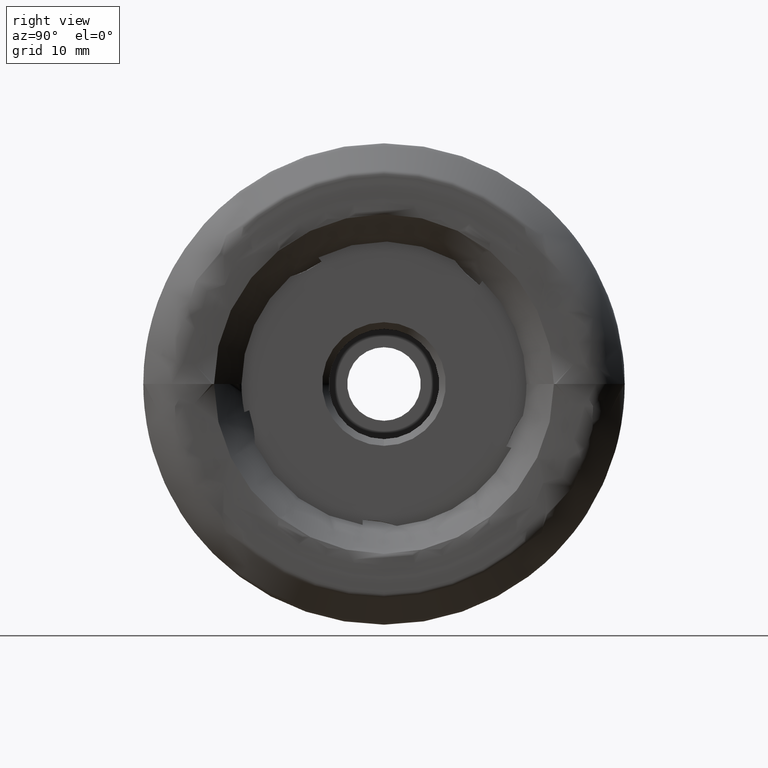
[diagram: clean part render]
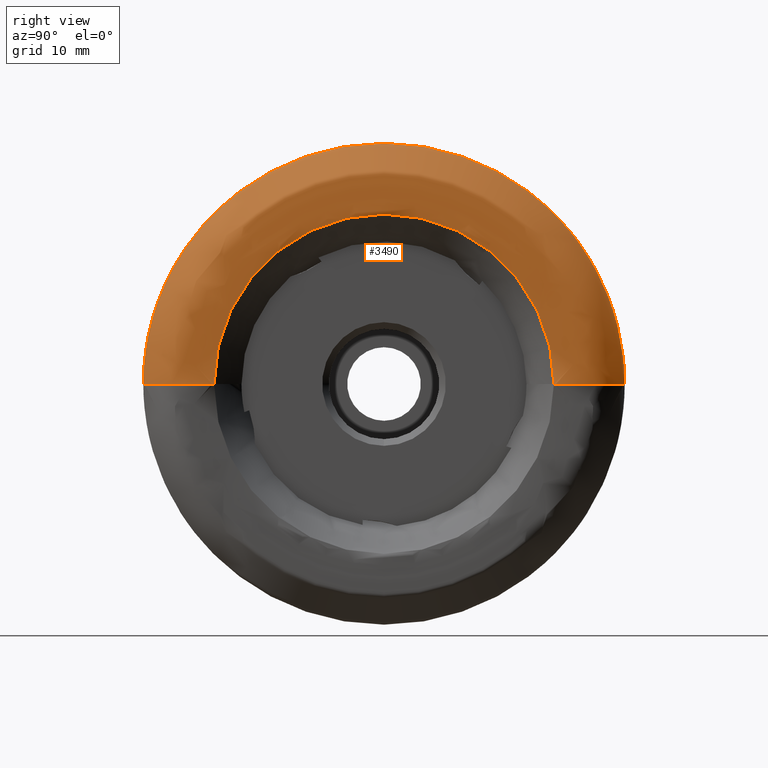
[diagram: same view with one face highlighted and labeled with its STEP entity id]
A machine part, right view. The second image highlights one B-rep face of the part: STEP entity #3490.
In plain terms, the highlighted face is a freeform B-spline surface patch.
Its self-contained STEP definition (entity closure, byte-faithful):
#3 = B_SPLINE_CURVE_WITH_KNOTS ( 'NONE', 3,
 ( #7957, #6799, #2420, #3541, #7987, #1782 ),
 .UNSPECIFIED., .F., .F.,
 ( 4, 2, 4 ),
 ( 0.01189599532139471600, 0.01226072878969401400, 0.01262546225799330900 ),
 .UNSPECIFIED. ) ;
#62 = CARTESIAN_POINT ( 'NONE',  ( -13.17009540682289300, -12.97455860111325300, 28.26625133954329200 ) ) ;
#80 = CARTESIAN_POINT ( 'NONE',  ( -13.17025533913538400, 30.29722864687689900, 6.481297492364658000 ) ) ;
#132 = ORIENTED_EDGE ( 'NONE', *, *, #6929, .T. ) ;
#156 = CARTESIAN_POINT ( 'NONE',  ( -3.011743768016451800, 35.76914618918057400, 0.0000000000000000000 ) ) ;
#189 = CARTESIAN_POINT ( 'NONE',  ( -1.185337271833276000, 33.83780983665130300, 0.0000000000000000000 ) ) ;
#217 = CARTESIAN_POINT ( 'NONE',  ( -7.731906885135562600, 36.00369043984147800, 0.0000000000000000000 ) ) ;
#223 = VERTEX_POINT ( 'NONE', #3355 ) ;
#247 = CARTESIAN_POINT ( 'NONE',  ( -5.081526267317423500, -36.00049763243033100, 4.408789419326766900E-015 ) ) ;
#252 = EDGE_CURVE ( 'NONE', #946, #1660, #7359, .T. ) ;
#259 = CARTESIAN_POINT ( 'NONE',  ( 0.8773937693158118100, -26.68687184256820500, 3.268199218125678200E-015 ) ) ;
#269 = CARTESIAN_POINT ( 'NONE',  ( 0.8903510184149950900, -29.17046889818731300, 58.34093779637463900 ) ) ;
#278 = CARTESIAN_POINT ( 'NONE',  ( 0.8491489175038966500, 30.61863014449269100, 0.0000000000000000000 ) ) ;
#279 = CARTESIAN_POINT ( 'NONE',  ( 0.6769082915252762100, -25.41563269011137300, 3.761732853588447800E-015 ) ) ;
#357 = ORIENTED_EDGE ( 'NONE', *, *, #6953, .F. ) ;
#386 = CARTESIAN_POINT ( 'NONE',  ( -5.681652619404665900, 36.00135854139767800, 0.0000000000000000000 ) ) ;
#414 = CARTESIAN_POINT ( 'NONE',  ( -8.288709363096252500, 35.99403635961470400, 71.98807271922939300 ) ) ;
#419 = CARTESIAN_POINT ( 'NONE',  ( -11.04244590814190900, -33.93129305921696200, 4.155384943590084700E-015 ) ) ;
#438 = CARTESIAN_POINT ( 'NONE',  ( -3.851631813436717800, 35.99627813785060900, 0.0000000000000000000 ) ) ;
#443 = CARTESIAN_POINT ( 'NONE',  ( 0.2656641914594217700, 32.31949441764042800, 0.0000000000000000000 ) ) ;
#444 = CARTESIAN_POINT ( 'NONE',  ( -9.631152913316247700, -35.40931746972965800, 4.336390729929688100E-015 ) ) ;
#459 = AXIS2_PLACEMENT_3D ( 'NONE', #4547, #5771, #7018 ) ;
#462 = CARTESIAN_POINT ( 'NONE',  ( -13.17025533913538400, 22.43254955693184300, 21.37077446517712400 ) ) ;
#467 = CARTESIAN_POINT ( 'NONE',  ( -7.143653929741852900, 36.00073531820430600, 0.0000000000000000000 ) ) ;
#474 = CARTESIAN_POINT ( 'NONE',  ( -0.1635939075222977700, -32.77030983189955300, 4.013205504270282800E-015 ) ) ;
#475 = CARTESIAN_POINT ( 'NONE',  ( -13.08139287266340900, -31.76693597388611300, 3.890327645913853400E-015 ) ) ;
#477 = CARTESIAN_POINT ( 'NONE',  ( 0.8510070374098627200, 31.04961192950485900, 0.0000000000000000000 ) ) ;
#491 = CARTESIAN_POINT ( 'NONE',  ( -11.04244590814191800, 33.93129305921695500, 67.86258611843389600 ) ) ;
#499 = CARTESIAN_POINT ( 'NONE',  ( -2.372931946753448900, 35.08185868617623300, 70.16371737235245100 ) ) ;
#516 = CARTESIAN_POINT ( 'NONE',  ( -13.13741538218969000, 31.68006013523005700, 0.0000000000000000000 ) ) ;
#535 = CARTESIAN_POINT ( 'NONE',  ( 0.7326512720188010900, 25.48099093884645700, 50.96198187769290700 ) ) ;
#542 = CARTESIAN_POINT ( 'NONE',  ( -11.71344801453608900, -33.22978714055647500, 66.45957428111295000 ) ) ;
#550 = CARTESIAN_POINT ( 'NONE',  ( -13.16857380573765500, 2.159345105495334800, 31.12359656850555800 ) ) ;
#567 = CARTESIAN_POINT ( 'NONE',  ( -13.16859245314035200, -31.25356432908474200, 62.50712865816948500 ) ) ;
#572 = VERTEX_POINT ( 'NONE', #5542 ) ;
#594 = CARTESIAN_POINT ( 'NONE',  ( -12.98773168804861200, -31.91275824050798700, 63.82551648101597400 ) ) ;
#618 = CARTESIAN_POINT ( 'NONE',  ( -13.16998003406791400, -31.10863379948670400, 3.809708880838854500E-015 ) ) ;
#640 = CARTESIAN_POINT ( 'NONE',  ( -13.17011651254518200, 30.34361586820452300, 6.758394760556298000 ) ) ;
#651 = EDGE_CURVE ( 'NONE', #3301, #754, #3614, .T. ) ;
#690 = CARTESIAN_POINT ( 'NONE',  ( 0.6769082915252702100, 25.41563269011137300, 0.0000000000000000000 ) ) ;
#754 = VERTEX_POINT ( 'NONE', #4066 ) ;
#796 = CARTESIAN_POINT ( 'NONE',  ( -13.11523772923032600, -29.55612944276756000, 11.41816260885997100 ) ) ;
#812 = CARTESIAN_POINT ( 'NONE',  ( 0.8637226665294909200, 31.38531758158612200, 0.0000000000000000000 ) ) ;
#814 = CARTESIAN_POINT ( 'NONE',  ( 0.6769082915252702100, 25.41563269011137300, 0.0000000000000000000 ) ) ;
#820 = CARTESIAN_POINT ( 'NONE',  ( 0.8955615196961443900, 29.95967021169398900, 59.91934042338795800 ) ) ;
#826 = B_SPLINE_CURVE_WITH_KNOTS ( 'NONE', 3,
 ( #3000, #6090, #550, #1744, #2977, #6751 ),
 .UNSPECIFIED., .F., .F.,
 ( 4, 2, 4 ),
 ( 0.005418451642175720100, 0.006269461646803571300, 0.007120471651431428500 ),
 .UNSPECIFIED. ) ;
#841 = CARTESIAN_POINT ( 'NONE',  ( 0.8795528310029795400, 26.27536188140701900, 0.0000000000000000000 ) ) ;
#897 = CARTESIAN_POINT ( 'NONE',  ( -9.956295156690961400, 35.06649553974418900, 0.0000000000000000000 ) ) ;
#908 = CARTESIAN_POINT ( 'NONE',  ( 0.8869010795176265300, -27.39395413118382500, 3.354791824274368200E-015 ) ) ;
#921 = CARTESIAN_POINT ( 'NONE',  ( -9.225536044631734700, 35.83698968397022400, 0.0000000000000000000 ) ) ;
#923 = CARTESIAN_POINT ( 'NONE',  ( 0.8637226665294985800, -31.38531758158612200, 3.843592871651259500E-015 ) ) ;
#946 = VERTEX_POINT ( 'NONE', #6247 ) ;
#975 = CARTESIAN_POINT ( 'NONE',  ( 0.2656641914594297100, -32.31949441764042800, 3.957996538862409600E-015 ) ) ;
#999 = CARTESIAN_POINT ( 'NONE',  ( -6.699013288944462900, 36.00135691815364000, 72.00271383630727900 ) ) ;
#1020 = CARTESIAN_POINT ( 'NONE',  ( -8.288709363096243600, -35.99403635961469700, 71.98807271922939300 ) ) ;
#1049 = CARTESIAN_POINT ( 'NONE',  ( -5.681652619404657000, -36.00135854139767800, 4.408894850267888900E-015 ) ) ;
#1056 = CARTESIAN_POINT ( 'NONE',  ( -8.715012628422291700, -36.01812692462019100, 4.410948384951922000E-015 ) ) ;
#1078 = CARTESIAN_POINT ( 'NONE',  ( -3.492091797847648700, -36.00552201842310000, 72.01104403684620100 ) ) ;
#1086 = CARTESIAN_POINT ( 'NONE',  ( -1.185337271833267500, -33.83780983665130300, 4.143936550661183600E-015 ) ) ;
#1108 = CARTESIAN_POINT ( 'NONE',  ( -8.715012628422300600, 36.01812692462019100, 72.03625384924036700 ) ) ;
#1114 = CARTESIAN_POINT ( 'NONE',  ( 0.8239534391794791600, 31.69573444937444500, 0.0000000000000000000 ) ) ;
#1130 = CARTESIAN_POINT ( 'NONE',  ( -9.631152913316256600, 35.40931746972965800, 0.0000000000000000000 ) ) ;
#1140 = CARTESIAN_POINT ( 'NONE',  ( -2.372931946753440000, -35.08185868617622600, 70.16371737235245100 ) ) ;
#1159 = CARTESIAN_POINT ( 'NONE',  ( -13.13741538218968200, -31.68006013523005400, 63.36012027046010800 ) ) ;
#1175 = CARTESIAN_POINT ( 'NONE',  ( 0.7326512720188074200, -25.48099093884645300, 50.96198187769290700 ) ) ;
#1184 = CARTESIAN_POINT ( 'NONE',  ( -13.17348671179126100, -31.45966882609840800, 62.91933765219681600 ) ) ;
#1206 = CARTESIAN_POINT ( 'NONE',  ( -9.631152913316247700, -35.40931746972965800, 70.81863493945931500 ) ) ;
#1230 = CARTESIAN_POINT ( 'NONE',  ( -12.98773168804861000, -31.91275824050799400, 3.908185723120143000E-015 ) ) ;
#1247 = CARTESIAN_POINT ( 'NONE',  ( 0.8422348069530951600, -25.63399111735867600, 51.26798223471735100 ) ) ;
#1252 = CARTESIAN_POINT ( 'NONE',  ( -13.17022834611911200, 31.00281612093919000, 0.0000000000000000000 ) ) ;
#1253 = EDGE_CURVE ( 'NONE', #6829, #5048, #7161, .T. ) ;
#1274 = CARTESIAN_POINT ( 'NONE',  ( -13.16998003406792100, 31.10863379948669700, 0.0000000000000000000 ) ) ;
#1276 = CARTESIAN_POINT ( 'NONE',  ( -13.17025533913538200, -28.32058393951910300, 12.56478436704439100 ) ) ;
#1349 = CARTESIAN_POINT ( 'NONE',  ( 0.8869010795176266400, -27.39395413118381800, 54.78790826236763700 ) ) ;
#1353 = CARTESIAN_POINT ( 'NONE',  ( -13.17025533913538200, 30.98272552351825800, 61.96545104703651700 ) ) ;
#1399 = AXIS2_PLACEMENT_3D ( 'NONE', #7438, #8066, #4303 ) ;
#1429 = CARTESIAN_POINT ( 'NONE',  ( -13.11523772923033900, 1.173550330312063100, 31.66325953881286300 ) ) ;
#1431 = CARTESIAN_POINT ( 'NONE',  ( -12.75715301477391100, 32.13220798184731600, 0.0000000000000000000 ) ) ;
#1441 = CARTESIAN_POINT ( 'NONE',  ( 0.8955615196961517200, -29.95967021169398200, 59.91934042338797900 ) ) ;
#1461 = CARTESIAN_POINT ( 'NONE',  ( -3.267599600869943700, 35.96652522588161100, 0.0000000000000000000 ) ) ;
#1497 = CARTESIAN_POINT ( 'NONE',  ( -0.1635939075223058500, 32.77030983189955300, 0.0000000000000000000 ) ) ;
#1499 = CARTESIAN_POINT ( 'NONE',  ( 0.8422348069530953800, -25.63399111735868300, 3.139258517124499000E-015 ) ) ;
#1542 = CARTESIAN_POINT ( 'NONE',  ( 0.8903510184149952000, -29.17046889818732000, 3.572352136579251600E-015 ) ) ;
#1547 = CARTESIAN_POINT ( 'NONE',  ( -10.69194148022291700, 34.29773228354669400, 0.0000000000000000000 ) ) ;
#1549 = CARTESIAN_POINT ( 'NONE',  ( -1.975678183863318800, -34.66350488162732500, 4.245055030051355300E-015 ) ) ;
#1555 = CARTESIAN_POINT ( 'NONE',  ( 0.8795528310029860900, -26.27536188140702200, 3.217803782450348000E-015 ) ) ;
#1607 = CARTESIAN_POINT ( 'NONE',  ( -3.492091797847649100, -36.00552201842310800, 4.409404729149141100E-015 ) ) ;
#1630 = CARTESIAN_POINT ( 'NONE',  ( -6.186797021292384200, 36.00132009260902100, 72.00264018521802700 ) ) ;
#1657 = CARTESIAN_POINT ( 'NONE',  ( -9.043963290430571800, -35.96793158361330700, 71.93586316722661400 ) ) ;
#1660 = VERTEX_POINT ( 'NONE', #7533 ) ;
#1688 = CARTESIAN_POINT ( 'NONE',  ( -3.492091797847658000, 36.00552201842310800, 72.01104403684620100 ) ) ;
#1694 = CARTESIAN_POINT ( 'NONE',  ( -12.75715301477390400, -32.13220798184731600, 3.935060565450634800E-015 ) ) ;
#1712 = CARTESIAN_POINT ( 'NONE',  ( -4.308370870621200900, 36.00286011124674000, 0.0000000000000000000 ) ) ;
#1719 = CARTESIAN_POINT ( 'NONE',  ( -1.599395780385767500, -34.27099581304320700, 4.196986532603570900E-015 ) ) ;
#1730 = CARTESIAN_POINT ( 'NONE',  ( 0.8339975965073290800, -28.21109362154964400, 56.42218724309928700 ) ) ;
#1736 = CARTESIAN_POINT ( 'NONE',  ( -6.379444055325612900, 36.00131635667011700, 0.0000000000000000000 ) ) ;
#1741 = CARTESIAN_POINT ( 'NONE',  ( -2.372931946753448400, 35.08185868617623300, 0.0000000000000000000 ) ) ;
#1742 = CARTESIAN_POINT ( 'NONE',  ( -6.379444055325604000, -36.00131635667011700, 4.408889684128730500E-015 ) ) ;
#1744 = CARTESIAN_POINT ( 'NONE',  ( -13.17213352084042600, 1.666171256084302500, 31.39430081097607000 ) ) ;
#1747 = EDGE_CURVE ( 'NONE', #1660, #6829, #6065, .T. ) ;
#1759 = CARTESIAN_POINT ( 'NONE',  ( -11.39561128621918600, 33.56192896292376600, 67.12385792584751700 ) ) ;
#1764 = CARTESIAN_POINT ( 'NONE',  ( -0.6637367395734633500, -33.29226382833061100, 4.077126433373428700E-015 ) ) ;
#1781 = CARTESIAN_POINT ( 'NONE',  ( -11.71344801453609100, -33.22978714055648900, 4.069475245803038400E-015 ) ) ;
#1782 = CARTESIAN_POINT ( 'NONE',  ( -13.11523772923626500, 22.83138065897512400, 21.96969007983673400 ) ) ;
#1802 = CARTESIAN_POINT ( 'NONE',  ( -11.04244590814190900, -33.93129305921694800, 67.86258611843389600 ) ) ;
#1811 = CARTESIAN_POINT ( 'NONE',  ( 0.8779665820292881200, -26.04477128202358600, 3.189564578505508600E-015 ) ) ;
#1824 = CARTESIAN_POINT ( 'NONE',  ( -10.69194148022290800, -34.29773228354668600, 68.59546456709337300 ) ) ;
#1832 = ORIENTED_EDGE ( 'NONE', *, *, #4915, .F. ) ;
#1840 = CARTESIAN_POINT ( 'NONE',  ( 0.7326512720188010900, 25.48099093884645700, 0.0000000000000000000 ) ) ;
#1847 = CARTESIAN_POINT ( 'NONE',  ( -11.71344801453610000, 33.22978714055648900, 0.0000000000000000000 ) ) ;
#1939 = AXIS2_PLACEMENT_3D ( 'NONE', #4283, #3656, #5444 ) ;
#1941 = ORIENTED_EDGE ( 'NONE', *, *, #8076, .F. ) ;
#2057 = CARTESIAN_POINT ( 'NONE',  ( -13.17025533913537800, -12.90314047274958800, 28.16803590607910100 ) ) ;
#2064 = CARTESIAN_POINT ( 'NONE',  ( -13.17022834611910100, 31.00281612094406100, 0.0000000000000000000 ) ) ;
#2085 = CARTESIAN_POINT ( 'NONE',  ( -13.17211317415996800, -13.18819403484361900, 28.56134480981161200 ) ) ;
#2092 = CARTESIAN_POINT ( 'NONE',  ( 0.8869010795176198700, 27.39395413118382200, 0.0000000000000000000 ) ) ;
#2096 = CARTESIAN_POINT ( 'NONE',  ( -13.11523772923039700, -3.015919409452347900E-015, 0.0000000000000000000 ) ) ;
#2120 = DIRECTION ( 'NONE',  ( 1.000000000000000000, 1.234377343560681600E-016, -0.0000000000000000000 ) ) ;
#2121 = CARTESIAN_POINT ( 'NONE',  ( -13.17025533913538600, 30.98272552351825800, 0.0000000000000000000 ) ) ;
#2122 = CARTESIAN_POINT ( 'NONE',  ( 0.8903510184149952000, -29.17046889818732000, 3.572352136579251600E-015 ) ) ;
#2146 = CARTESIAN_POINT ( 'NONE',  ( 0.8814524413362979600, 25.85308700828592900, 0.0000000000000000000 ) ) ;
#2147 = CARTESIAN_POINT ( 'NONE',  ( 0.6626705590894725900, -31.89877927880542400, 3.906473794049697800E-015 ) ) ;
#2149 = ORIENTED_EDGE ( 'NONE', *, *, #4269, .T. ) ;
#2177 = CARTESIAN_POINT ( 'NONE',  ( -13.17348671179127000, 31.45966882609841500, 0.0000000000000000000 ) ) ;
#2179 = CARTESIAN_POINT ( 'NONE',  ( -4.308370870621192100, -36.00286011124674000, 4.409078739538823700E-015 ) ) ;
#2212 = EDGE_CURVE ( 'NONE', #223, #4953, #6686, .T. ) ;
#2233 = CARTESIAN_POINT ( 'NONE',  ( 0.8795528310029860900, -26.27536188140702200, 3.217803782450348000E-015 ) ) ;
#2250 = CARTESIAN_POINT ( 'NONE',  ( -7.731906885135553700, -36.00369043984147800, 4.409180425464403500E-015 ) ) ;
#2267 = CARTESIAN_POINT ( 'NONE',  ( 0.8773937693158118100, -26.68687184256820200, 53.37374368513640400 ) ) ;
#2279 = CARTESIAN_POINT ( 'NONE',  ( -5.081526267317432400, 36.00049763243033100, 0.0000000000000000000 ) ) ;
#2303 = CARTESIAN_POINT ( 'NONE',  ( 0.8955615196961517200, -29.95967021169398900, 3.669001422826134400E-015 ) ) ;
#2308 = CARTESIAN_POINT ( 'NONE',  ( -4.308370870621192100, -36.00286011124673300, 72.00572022249346600 ) ) ;
#2332 = CARTESIAN_POINT ( 'NONE',  ( -3.011743768016452300, 35.76914618918058200, 71.53829237836113500 ) ) ;
#2338 = CARTESIAN_POINT ( 'NONE',  ( -1.975678183863318800, -34.66350488162731800, 69.32700976325463700 ) ) ;
#2360 = CARTESIAN_POINT ( 'NONE',  ( -5.681652619404657900, -36.00135854139767800, 72.00271708279535700 ) ) ;
#2366 = CARTESIAN_POINT ( 'NONE',  ( -0.1635939075223058500, 32.77030983189955300, 0.0000000000000000000 ) ) ;
#2368 = CARTESIAN_POINT ( 'NONE',  ( -12.98072886215345900, -31.91942307342384700, 3.909001929749868600E-015 ) ) ;
#2388 = CARTESIAN_POINT ( 'NONE',  ( -12.45997370198138300, 32.45221115560920600, 0.0000000000000000000 ) ) ;
#2394 = CARTESIAN_POINT ( 'NONE',  ( -0.1635939075223058800, 32.77030983189955300, 65.54061966379907700 ) ) ;
#2419 = CARTESIAN_POINT ( 'NONE',  ( -13.13741538218968200, -31.68006013523005700, 3.879688424140515600E-015 ) ) ;
#2420 = CARTESIAN_POINT ( 'NONE',  ( -13.16922204672032000, 22.57159731778707700, 21.56990601855681400 ) ) ;
#2438 = CARTESIAN_POINT ( 'NONE',  ( 0.8422348069530890500, 25.63399111735867900, 0.0000000000000000000 ) ) ;
#2443 = CARTESIAN_POINT ( 'NONE',  ( -12.45997370198138300, 32.45221115560920600, 64.90442231121841100 ) ) ;
#2462 = CARTESIAN_POINT ( 'NONE',  ( 0.6769082915252765400, -25.41563269011137600, 3.112517322224972300E-015 ) ) ;
#2469 = CARTESIAN_POINT ( 'NONE',  ( -9.225536044631734700, 35.83698968397022400, 0.0000000000000000000 ) ) ;
#2489 = CARTESIAN_POINT ( 'NONE',  ( -10.69194148022290800, -34.29773228354669400, 4.200260805905830000E-015 ) ) ;
#2684 = CARTESIAN_POINT ( 'NONE',  ( -11.39561128621918800, 33.56192896292376600, 0.0000000000000000000 ) ) ;
#2712 = CARTESIAN_POINT ( 'NONE',  ( -6.186797021292383300, 36.00132009260902100, 0.0000000000000000000 ) ) ;
#2740 = CARTESIAN_POINT ( 'NONE',  ( -3.492091797847658000, 36.00552201842310800, 0.0000000000000000000 ) ) ;
#2741 = CARTESIAN_POINT ( 'NONE',  ( 0.8510070374098703800, -31.04961192950486300, 3.802480786423560300E-015 ) ) ;
#2760 = CARTESIAN_POINT ( 'NONE',  ( -5.681652619404665900, 36.00135854139767800, 0.0000000000000000000 ) ) ;
#2782 = CARTESIAN_POINT ( 'NONE',  ( -13.16998003406789800, 31.10863379948913000, 0.0000000000000000000 ) ) ;
#2787 = DIRECTION ( 'NONE',  ( 1.000000000000000000, 1.234377343560681600E-016, -0.0000000000000000000 ) ) ;
#2814 = CARTESIAN_POINT ( 'NONE',  ( 0.8637226665294909200, 31.38531758158612200, 0.0000000000000000000 ) ) ;
#2827 = ORIENTED_EDGE ( 'NONE', *, *, #6224, .T. ) ;
#2841 = CARTESIAN_POINT ( 'NONE',  ( -2.723008428202819500, -35.43507327937143000, 4.339544906913413100E-015 ) ) ;
#2859 = CARTESIAN_POINT ( 'NONE',  ( -8.715012628422298800, 36.01812692462019100, 0.0000000000000000000 ) ) ;
#2889 = CARTESIAN_POINT ( 'NONE',  ( -7.731906885135554600, -36.00369043984147800, 72.00738087968295500 ) ) ;
#2897 = CARTESIAN_POINT ( 'NONE',  ( -6.699013288944454900, -36.00135691815364000, 4.408894651477827300E-015 ) ) ;
#2915 = CARTESIAN_POINT ( 'NONE',  ( -6.379444055325604000, -36.00131635667011700, 4.408889684128730500E-015 ) ) ;
#2923 = CARTESIAN_POINT ( 'NONE',  ( -0.6637367395734634600, -33.29226382833060400, 66.58452765666120900 ) ) ;
#2942 = CARTESIAN_POINT ( 'NONE',  ( -6.186797021292383300, 36.00132009260902100, 0.0000000000000000000 ) ) ;
#2947 = CARTESIAN_POINT ( 'NONE',  ( 0.6626705590894725900, -31.89877927880542400, 3.906473794049697800E-015 ) ) ;
#2968 = CARTESIAN_POINT ( 'NONE',  ( -6.699013288944454900, -36.00135691815364000, 4.408894651477827300E-015 ) ) ;
#2974 = CARTESIAN_POINT ( 'NONE',  ( 0.8637226665294985800, -31.38531758158612200, 3.843592871651259500E-015 ) ) ;
#2977 = CARTESIAN_POINT ( 'NONE',  ( -13.16656680713323400, 1.419818888233930400, 31.52978262794960800 ) ) ;
#2992 = CARTESIAN_POINT ( 'NONE',  ( -12.98773168804861900, 31.91275824050799400, 0.0000000000000000000 ) ) ;
#2998 = CARTESIAN_POINT ( 'NONE',  ( 0.6626705590894725900, -31.89877927880542100, 63.79755855761084100 ) ) ;
#3000 = CARTESIAN_POINT ( 'NONE',  ( -13.17025533913538200, 2.659956771102236100, 30.86833184416575500 ) ) ;
#3018 = CARTESIAN_POINT ( 'NONE',  ( -9.381096744915060600, -35.66587087471045700, 71.33174174942091400 ) ) ;
#3044 = CARTESIAN_POINT ( 'NONE',  ( -12.09380887392045300, 32.83100224547518300, 65.66200449095035200 ) ) ;
#3049 = CARTESIAN_POINT ( 'NONE',  ( 0.8795528310029795400, 26.27536188140701200, 52.55072376281401600 ) ) ;
#3071 = CARTESIAN_POINT ( 'NONE',  ( -12.45997370198137600, -32.45221115560920600, 64.90442231121841100 ) ) ;
#3094 = CARTESIAN_POINT ( 'NONE',  ( -9.225536044631725800, -35.83698968397022400, 4.388765470755084800E-015 ) ) ;
#3104 = FACE_OUTER_BOUND ( 'NONE', #6288, .T. ) ;
#3115 = CIRCLE ( 'NONE', #459, 30.98272552351826200 ) ;
#3122 = CARTESIAN_POINT ( 'NONE',  ( -13.17025533913538200, 2.659956771102236100, 30.86833184416575500 ) ) ;
#3148 = VERTEX_POINT ( 'NONE', #462 ) ;
#3272 = CARTESIAN_POINT ( 'NONE',  ( 0.4888808830429692800, 32.08944693147780200, 0.0000000000000000000 ) ) ;
#3288 = CARTESIAN_POINT ( 'NONE',  ( -13.16857380573764200, -28.72492469414901000, 12.17455280325268600 ) ) ;
#3301 = VERTEX_POINT ( 'NONE', #1429 ) ;
#3303 = CARTESIAN_POINT ( 'NONE',  ( -13.13741538218969000, 31.68006013523005700, 0.0000000000000000000 ) ) ;
#3336 = CARTESIAN_POINT ( 'NONE',  ( 0.8779665820292817900, 26.04477128202358200, 0.0000000000000000000 ) ) ;
#3341 = EDGE_CURVE ( 'NONE', #3947, #223, #7335, .T. ) ;
#3355 = CARTESIAN_POINT ( 'NONE',  ( -13.17025533913538200, -28.32058393951910300, 12.56478436704439100 ) ) ;
#3357 = CARTESIAN_POINT ( 'NONE',  ( 0.8773937693158051500, 26.68687184256820200, 0.0000000000000000000 ) ) ;
#3358 = CARTESIAN_POINT ( 'NONE',  ( -2.372931946753440000, -35.08185868617623300, 4.296288594816550100E-015 ) ) ;
#3386 = CARTESIAN_POINT ( 'NONE',  ( -6.379444055325612900, 36.00131635667011700, 0.0000000000000000000 ) ) ;
#3482 = ORIENTED_EDGE ( 'NONE', *, *, #1253, .T. ) ;
#3485 = CARTESIAN_POINT ( 'NONE',  ( -7.143653929741844000, -36.00073531820430600, 4.408818527438997800E-015 ) ) ;
#3490 = ADVANCED_FACE ( 'NONE', ( #3104 ), #6579, .T. ) ;
#3515 = CARTESIAN_POINT ( 'NONE',  ( -6.186797021292374400, -36.00132009260901400, 72.00264018521802700 ) ) ;
#3539 = CARTESIAN_POINT ( 'NONE',  ( -3.851631813436708900, -35.99627813785060900, 4.408272680273659400E-015 ) ) ;
#3541 = CARTESIAN_POINT ( 'NONE',  ( -13.17211317415996800, 22.71162606922714700, 21.76834675709754700 ) ) ;
#3545 = CARTESIAN_POINT ( 'NONE',  ( -0.6637367395734716800, 33.29226382833061100, 0.0000000000000000000 ) ) ;
#3565 = CARTESIAN_POINT ( 'NONE',  ( -6.699013288944454000, -36.00135691815364000, 72.00271383630727900 ) ) ;
#3571 = CARTESIAN_POINT ( 'NONE',  ( 0.4888808830429772200, -32.08944693147780200, 3.929823847104314600E-015 ) ) ;
#3573 = CARTESIAN_POINT ( 'NONE',  ( -9.956295156690952600, -35.06649553974418900, 4.294407152006266600E-015 ) ) ;
#3586 = CARTESIAN_POINT ( 'NONE',  ( 0.8869010795176198700, 27.39395413118382200, 0.0000000000000000000 ) ) ;
#3592 = CARTESIAN_POINT ( 'NONE',  ( -4.308370870621200900, 36.00286011124674000, 72.00572022249346600 ) ) ;
#3600 = CARTESIAN_POINT ( 'NONE',  ( 0.2656641914594217700, 32.31949441764042800, 64.63898883528084100 ) ) ;
#3614 = CIRCLE ( 'NONE', #7164, 31.68499999999999200 ) ;
#3626 = CARTESIAN_POINT ( 'NONE',  ( -12.98773168804861700, 31.91275824050799100, 63.82551648101597400 ) ) ;
#3648 = CARTESIAN_POINT ( 'NONE',  ( -11.04244590814190900, -33.93129305921696200, 4.155384943590084700E-015 ) ) ;
#3656 = DIRECTION ( 'NONE',  ( 1.000000000000000000, 1.234377343560681600E-016, -0.0000000000000000000 ) ) ;
#3669 = CARTESIAN_POINT ( 'NONE',  ( 0.8814524413362978500, 25.85308700828592200, 51.70617401657183600 ) ) ;
#3674 = CARTESIAN_POINT ( 'NONE',  ( -13.16859245314036100, 31.25356432908475300, 62.50712865816948500 ) ) ;
#3688 = CARTESIAN_POINT ( 'NONE',  ( 0.6769082915252702100, 25.41563269011137300, 0.0000000000000000000 ) ) ;
#3699 = CARTESIAN_POINT ( 'NONE',  ( -12.75715301477390400, -32.13220798184731600, 3.935060565450634800E-015 ) ) ;
#3726 = CARTESIAN_POINT ( 'NONE',  ( -10.32000283844516100, 34.68684051006878400, 69.37368102013755300 ) ) ;
#3736 = CARTESIAN_POINT ( 'NONE',  ( 0.8491489175038966500, 30.61863014449269100, 0.0000000000000000000 ) ) ;
#3737 = CARTESIAN_POINT ( 'NONE',  ( 0.8955615196961442800, 29.95967021169398600, 0.0000000000000000000 ) ) ;
#3800 = CARTESIAN_POINT ( 'NONE',  ( -13.17213352084042900, 30.50966050617204300, 7.585437750241117000 ) ) ;
#3834 = CARTESIAN_POINT ( 'NONE',  ( -13.11523772923625600, -13.33957960579438800, 28.74012597292806200 ) ) ;
#3894 = CARTESIAN_POINT ( 'NONE',  ( -2.372931946753448400, 35.08185868617623300, 0.0000000000000000000 ) ) ;
#3912 = CARTESIAN_POINT ( 'NONE',  ( -13.16922204672030200, -13.04615353257499600, 28.36433903919123300 ) ) ;
#3922 = CARTESIAN_POINT ( 'NONE',  ( 0.8510070374098627200, 31.04961192950485900, 0.0000000000000000000 ) ) ;
#3947 = VERTEX_POINT ( 'NONE', #4793 ) ;
#3951 = CARTESIAN_POINT ( 'NONE',  ( -11.04244590814191800, 33.93129305921696200, 0.0000000000000000000 ) ) ;
#3975 = CARTESIAN_POINT ( 'NONE',  ( -13.17025533913538200, -3.022710658568705000E-015, 0.0000000000000000000 ) ) ;
#3976 = CARTESIAN_POINT ( 'NONE',  ( -9.381096744915069500, 35.66587087471045700, 0.0000000000000000000 ) ) ;
#4007 = CARTESIAN_POINT ( 'NONE',  ( 0.8239534391794791600, 31.69573444937444500, 0.0000000000000000000 ) ) ;
#4017 = CARTESIAN_POINT ( 'NONE',  ( -13.11523772923039700, -3.015919409452347900E-015, 0.0000000000000000000 ) ) ;
#4047 = DIRECTION ( 'NONE',  ( -1.094980890627620400E-016, 1.000000000000000000, 0.0000000000000000000 ) ) ;
#4063 = CARTESIAN_POINT ( 'NONE',  ( 0.8339975965073293000, -28.21109362154964700, 3.454862550407708800E-015 ) ) ;
#4066 = CARTESIAN_POINT ( 'NONE',  ( -13.11523772923625600, -13.33957960579438800, 28.74012597292806200 ) ) ;
#4113 = CARTESIAN_POINT ( 'NONE',  ( -3.011743768016443800, -35.76914618918056700, 71.53829237836113500 ) ) ;
#4123 = CARTESIAN_POINT ( 'NONE',  ( -13.11523772923038000, 30.62283859691001500, 8.135169406201740100 ) ) ;
#4148 = CARTESIAN_POINT ( 'NONE',  ( -3.267599600869934800, -35.96652522588161100, 4.404628999432845400E-015 ) ) ;
#4156 = CARTESIAN_POINT ( 'NONE',  ( -7.143653929741844000, -36.00073531820430600, 4.408818527438997800E-015 ) ) ;
#4172 = CARTESIAN_POINT ( 'NONE',  ( -2.723008428202819500, -35.43507327937143000, 70.87014655874286000 ) ) ;
#4176 = CARTESIAN_POINT ( 'NONE',  ( 0.8239534391794791600, 31.69573444937444500, 63.39146889874887600 ) ) ;
#4195 = CARTESIAN_POINT ( 'NONE',  ( -3.851631813436717300, 35.99627813785061600, 71.99255627570120500 ) ) ;
#4198 = ORIENTED_EDGE ( 'NONE', *, *, #1747, .T. ) ;
#4200 = CARTESIAN_POINT ( 'NONE',  ( 0.8239534391794869400, -31.69573444937443800, 63.39146889874887600 ) ) ;
#4201 = CARTESIAN_POINT ( 'NONE',  ( -9.225536044631725800, -35.83698968397022400, 4.388765470755084800E-015 ) ) ;
#4217 = CARTESIAN_POINT ( 'NONE',  ( -3.492091797847658000, 36.00552201842310800, 0.0000000000000000000 ) ) ;
#4223 = CARTESIAN_POINT ( 'NONE',  ( -1.599395780385775900, 34.27099581304320700, 68.54199162608640000 ) ) ;
#4249 = CARTESIAN_POINT ( 'NONE',  ( -12.75715301477390500, -32.13220798184730900, 64.26441596369461700 ) ) ;
#4269 = EDGE_CURVE ( 'NONE', #6732, #946, #5845, .T. ) ;
#4272 = CARTESIAN_POINT ( 'NONE',  ( -13.17348671179127000, 31.45966882609841500, 0.0000000000000000000 ) ) ;
#4283 = CARTESIAN_POINT ( 'NONE',  ( 0.6769082915252731000, -1.313448152742206900E-015, 0.0000000000000000000 ) ) ;
#4298 = CARTESIAN_POINT ( 'NONE',  ( -9.956295156690961400, 35.06649553974419600, 70.13299107948836300 ) ) ;
#4303 = DIRECTION ( 'NONE',  ( -1.094980890627620400E-016, 1.000000000000000000, 0.0000000000000000000 ) ) ;
#4311 = B_SPLINE_CURVE_WITH_KNOTS ( 'NONE', 3,
 ( #279, #4633, #1499, #5853, #5256, #2233, #5888, #7829, #4063, #2122, #6619, #6502, #2741, #923, #4660, #2147, #5978, #975, #7231, #5341, #7119, #5283, #1549, #3358, #2841, #5926, #5311, #1607, #7750, #2179, #247, #6553, #5949, #1742, #2897, #4156, #7912, #7339, #1056, #4778, #4201, #4809, #444, #3573, #7373, #6113, #419, #5470, #7994, #7886, #5419, #1694, #2368, #475, #6749 ),
 .UNSPECIFIED., .F., .F.,
 ( 4, 1, 1, 1, 1, 1, 1, 1, 1, 1, 1, 1, 1, 1, 1, 1, 1, 1, 1, 1, 1, 1, 1, 1, 1, 1, 1, 1, 1, 1, 1, 1, 1, 1, 1, 1, 1, 1, 1, 1, 1, 1, 1, 1, 1, 1, 1, 1, 1, 1, 1, 1, 4 ),
 ( 0.0000000000000000000, 0.005206402175519087700, 0.01127024345722349800, 0.01310695478144814500, 0.01690509640540080800, 0.02530848474839602800, 0.03818228578278340400, 0.05997523632573105400, 0.07509721469525672300, 0.09668704718361671700, 0.1079923595276068200, 0.1153388150103440300, 0.1228840271817703700, 0.1285988625673358000, 0.1338139750599458600, 0.1382770339274778100, 0.1444018786646815400, 0.1533063016225023300, 0.1762185834832225600, 0.1884292868187187300, 0.1992884307503665900, 0.2127245781392437500, 0.2215502283364232100, 0.2344433466767488800, 0.2429719183492294600, 0.2485239533970654600, 0.2536693044897949700, 0.2564384346056107800, 0.2704767708064568800, 0.2814579618747353200, 0.3035512373758871800, 0.3070313395298510700, 0.3122312181979924300, 0.3152870915960369100, 0.3264993766933615400, 0.3393167122801001900, 0.3511309520383115200, 0.3603934466132662200, 0.3653514513014479200, 0.3710357281075983800, 0.3735511902581497000, 0.3794714660104357400, 0.3928382422289509200, 0.4023466725055844200, 0.4114973353115070100, 0.4256304792000374400, 0.4332374280285543600, 0.4426291067938224500, 0.4536362741218079000, 0.4668081983197906500, 0.4747287366511387400, 0.4802253031722830100, 0.4856179381851841700 ),
 .UNSPECIFIED. ) ;
#4320 = CARTESIAN_POINT ( 'NONE',  ( -9.225536044631727600, -35.83698968397021600, 71.67397936794043300 ) ) ;
#4334 = CARTESIAN_POINT ( 'NONE',  ( 0.7326512720188074200, -25.48099093884646000, 3.120521399236102400E-015 ) ) ;
#4341 = CARTESIAN_POINT ( 'NONE',  ( -13.17011651254518500, -28.52098567758855900, 12.36787369257370300 ) ) ;
#4395 = CARTESIAN_POINT ( 'NONE',  ( -13.17022834611910500, -31.00281612093919700, 3.796749952706214200E-015 ) ) ;
#4396 = CARTESIAN_POINT ( 'NONE',  ( -13.11523772923626500, 22.83138065897512400, 21.96969007983673400 ) ) ;
#4419 = ORIENTED_EDGE ( 'NONE', *, *, #7919, .T. ) ;
#4455 = AXIS2_PLACEMENT_3D ( 'NONE', #4545, #5827, #7666 ) ;
#4500 = CARTESIAN_POINT ( 'NONE',  ( -13.17213352084041700, -29.14144228387768700, 11.79638044825958700 ) ) ;
#4519 = CARTESIAN_POINT ( 'NONE',  ( -7.143653929741852900, 36.00073531820430600, 0.0000000000000000000 ) ) ;
#4545 = CARTESIAN_POINT ( 'NONE',  ( -13.17025533913538200, -3.022710658568705000E-015, 0.0000000000000000000 ) ) ;
#4547 = CARTESIAN_POINT ( 'NONE',  ( -13.17025533913538200, -3.022710658568705000E-015, 0.0000000000000000000 ) ) ;
#4577 = CARTESIAN_POINT ( 'NONE',  ( -11.71344801453610000, 33.22978714055648900, 0.0000000000000000000 ) ) ;
#4602 = CARTESIAN_POINT ( 'NONE',  ( -5.081526267317432400, 36.00049763243033100, 0.0000000000000000000 ) ) ;
#4632 = CARTESIAN_POINT ( 'NONE',  ( -6.699013288944462900, 36.00135691815364000, 0.0000000000000000000 ) ) ;
#4633 = CARTESIAN_POINT ( 'NONE',  ( 0.7326512720188074200, -25.48099093884646000, 3.120521399236102400E-015 ) ) ;
#4660 = CARTESIAN_POINT ( 'NONE',  ( 0.8239534391794869400, -31.69573444937444500, 3.881607974005090200E-015 ) ) ;
#4713 = CARTESIAN_POINT ( 'NONE',  ( 0.8903510184149879800, 29.17046889818731600, 0.0000000000000000000 ) ) ;
#4716 = CARTESIAN_POINT ( 'NONE',  ( -6.186797021292375300, -36.00132009260902100, 4.408890141649293300E-015 ) ) ;
#4737 = DIRECTION ( 'NONE',  ( 1.000000000000000000, 1.234377343560681600E-016, -0.0000000000000000000 ) ) ;
#4746 = CARTESIAN_POINT ( 'NONE',  ( -7.731906885135561700, 36.00369043984147800, 72.00738087968295500 ) ) ;
#4761 = CARTESIAN_POINT ( 'NONE',  ( 0.8773937693158051500, 26.68687184256820500, 53.37374368513639000 ) ) ;
#4766 = CARTESIAN_POINT ( 'NONE',  ( 0.8339975965073293000, -28.21109362154964700, 3.454862550407708800E-015 ) ) ;
#4770 = CARTESIAN_POINT ( 'NONE',  ( -3.011743768016443400, -35.76914618918057400, 4.380457038881373900E-015 ) ) ;
#4778 = CARTESIAN_POINT ( 'NONE',  ( -9.043963290430570000, -35.96793158361331400, 4.404801228582303200E-015 ) ) ;
#4793 = CARTESIAN_POINT ( 'NONE',  ( -13.17025533913537800, -12.90314047274958800, 28.16803590607910100 ) ) ;
#4804 = CARTESIAN_POINT ( 'NONE',  ( -2.723008428202819500, -35.43507327937143000, 4.339544906913413100E-015 ) ) ;
#4808 = CARTESIAN_POINT ( 'NONE',  ( -1.185337271833267500, -33.83780983665128900, 67.67561967330257700 ) ) ;
#4809 = CARTESIAN_POINT ( 'NONE',  ( -9.381096744915060600, -35.66587087471045700, 4.367809460551697300E-015 ) ) ;
#4827 = CARTESIAN_POINT ( 'NONE',  ( -7.143653929741844000, -36.00073531820429900, 72.00147063640859800 ) ) ;
#4834 = CARTESIAN_POINT ( 'NONE',  ( -1.185337271833276000, 33.83780983665129600, 67.67561967330257700 ) ) ;
#4848 = CARTESIAN_POINT ( 'NONE',  ( -9.381096744915069500, 35.66587087471045700, 71.33174174942091400 ) ) ;
#4854 = CARTESIAN_POINT ( 'NONE',  ( 0.6626705590894645900, 31.89877927880542400, 63.79755855761084100 ) ) ;
#4877 = CARTESIAN_POINT ( 'NONE',  ( -13.13741538218969000, 31.68006013523005700, 63.36012027046010800 ) ) ;
#4903 = CARTESIAN_POINT ( 'NONE',  ( -13.17348671179126800, 31.45966882609841500, 62.91933765219681600 ) ) ;
#4915 = EDGE_CURVE ( 'NONE', #3148, #5048, #3, .T. ) ;
#4922 = CARTESIAN_POINT ( 'NONE',  ( 0.8779665820292817900, 26.04477128202358200, 0.0000000000000000000 ) ) ;
#4927 = CARTESIAN_POINT ( 'NONE',  ( -13.16859245314035600, -31.25356432908475000, 3.827457751755953600E-015 ) ) ;
#4952 = CARTESIAN_POINT ( 'NONE',  ( -10.32000283844516100, 34.68684051006878400, 0.0000000000000000000 ) ) ;
#4953 = VERTEX_POINT ( 'NONE', #6723 ) ;
#4971 = CARTESIAN_POINT ( 'NONE',  ( 0.8422348069530890500, 25.63399111735867900, 51.26798223471735100 ) ) ;
#5038 = CARTESIAN_POINT ( 'NONE',  ( 0.8637226665294909200, 31.38531758158612200, 62.77063516317223700 ) ) ;
#5039 = AXIS2_PLACEMENT_3D ( 'NONE', #4017, #4737, #4047 ) ;
#5048 = VERTEX_POINT ( 'NONE', #4396 ) ;
#5062 = CARTESIAN_POINT ( 'NONE',  ( -13.17025533913537500, -30.98272552351825800, 61.96545104703651700 ) ) ;
#5081 = AXIS2_PLACEMENT_3D ( 'NONE', #3975, #2120, #6415 ) ;
#5086 = VERTEX_POINT ( 'NONE', #3122 ) ;
#5155 = CARTESIAN_POINT ( 'NONE',  ( -13.16656680713323300, -29.34974734422928600, 11.60755827342875400 ) ) ;
#5168 = CARTESIAN_POINT ( 'NONE',  ( -9.631152913316256600, 35.40931746972965800, 0.0000000000000000000 ) ) ;
#5197 = CARTESIAN_POINT ( 'NONE',  ( -2.723008428202828000, 35.43507327937143000, 0.0000000000000000000 ) ) ;
#5226 = CARTESIAN_POINT ( 'NONE',  ( 0.2656641914594217700, 32.31949441764042800, 0.0000000000000000000 ) ) ;
#5254 = CARTESIAN_POINT ( 'NONE',  ( -8.288709363096252500, 35.99403635961470400, 0.0000000000000000000 ) ) ;
#5256 = CARTESIAN_POINT ( 'NONE',  ( 0.8779665820292881200, -26.04477128202358600, 3.189564578505508600E-015 ) ) ;
#5282 = CARTESIAN_POINT ( 'NONE',  ( 0.8422348069530890500, 25.63399111735867900, 0.0000000000000000000 ) ) ;
#5283 = CARTESIAN_POINT ( 'NONE',  ( -1.599395780385767500, -34.27099581304320700, 4.196986532603570900E-015 ) ) ;
#5311 = CARTESIAN_POINT ( 'NONE',  ( -3.267599600869934800, -35.96652522588161100, 4.404628999432845400E-015 ) ) ;
#5341 = CARTESIAN_POINT ( 'NONE',  ( -0.6637367395734633500, -33.29226382833061100, 4.077126433373428700E-015 ) ) ;
#5349 = CARTESIAN_POINT ( 'NONE',  ( 0.8339975965073223000, 28.21109362154964400, 56.42218724309928000 ) ) ;
#5360 = CARTESIAN_POINT ( 'NONE',  ( -5.681652619404665900, 36.00135854139768600, 72.00271708279535700 ) ) ;
#5390 = CARTESIAN_POINT ( 'NONE',  ( -9.043963290430580700, 35.96793158361331400, 71.93586316722661400 ) ) ;
#5412 = CARTESIAN_POINT ( 'NONE',  ( -8.715012628422291700, -36.01812692462018400, 72.03625384924036700 ) ) ;
#5419 = CARTESIAN_POINT ( 'NONE',  ( -12.45997370198137600, -32.45221115560920600, 3.974249651697084700E-015 ) ) ;
#5439 = CARTESIAN_POINT ( 'NONE',  ( -3.492091797847649100, -36.00552201842310800, 4.409404729149141100E-015 ) ) ;
#5442 = CARTESIAN_POINT ( 'NONE',  ( -1.599395780385775900, 34.27099581304320700, 0.0000000000000000000 ) ) ;
#5444 = DIRECTION ( 'NONE',  ( -1.109130621626857800E-016, 1.000000000000000000, 0.0000000000000000000 ) ) ;
#5463 = CARTESIAN_POINT ( 'NONE',  ( -8.715012628422291700, -36.01812692462019100, 4.410948384951922000E-015 ) ) ;
#5469 = CARTESIAN_POINT ( 'NONE',  ( -1.975678183863318800, -34.66350488162732500, 4.245055030051355300E-015 ) ) ;
#5470 = CARTESIAN_POINT ( 'NONE',  ( -11.39561128621917900, -33.56192896292376600, 4.110150887765543400E-015 ) ) ;
#5495 = CARTESIAN_POINT ( 'NONE',  ( -9.956295156690961400, 35.06649553974418900, 0.0000000000000000000 ) ) ;
#5502 = CARTESIAN_POINT ( 'NONE',  ( 0.4888808830429692800, 32.08944693147780200, 64.17889386295559000 ) ) ;
#5520 = CARTESIAN_POINT ( 'NONE',  ( -10.32000283844515200, -34.68684051006878400, 4.247912820319048000E-015 ) ) ;
#5542 = CARTESIAN_POINT ( 'NONE',  ( -13.11523772923039400, -31.68499999999999200, 3.880293383098401800E-015 ) ) ;
#5546 = CARTESIAN_POINT ( 'NONE',  ( -13.17348671179126300, -31.45966882609841500, 3.852698273011719500E-015 ) ) ;
#5565 = CARTESIAN_POINT ( 'NONE',  ( -9.225536044631734700, 35.83698968397021600, 71.67397936794043300 ) ) ;
#5588 = CARTESIAN_POINT ( 'NONE',  ( -10.32000283844515200, -34.68684051006877700, 69.37368102013755300 ) ) ;
#5606 = CARTESIAN_POINT ( 'NONE',  ( 0.8422348069530953800, -25.63399111735868300, 3.139258517124499000E-015 ) ) ;
#5641 = CARTESIAN_POINT ( 'NONE',  ( -13.17022834611911000, 31.00281612093919400, 62.00563224187837400 ) ) ;
#5699 = CARTESIAN_POINT ( 'NONE',  ( -13.17025533913538400, 30.98272552351825800, 0.0000000000000000000 ) ) ;
#5771 = DIRECTION ( 'NONE',  ( 1.000000000000000000, 1.234377343560681600E-016, -0.0000000000000000000 ) ) ;
#5795 = CARTESIAN_POINT ( 'NONE',  ( -10.32000283844516100, 34.68684051006878400, 0.0000000000000000000 ) ) ;
#5827 = DIRECTION ( 'NONE',  ( 1.000000000000000000, 1.234377343560681600E-016, -0.0000000000000000000 ) ) ;
#5828 = CARTESIAN_POINT ( 'NONE',  ( -1.975678183863327500, 34.66350488162732500, 0.0000000000000000000 ) ) ;
#5845 = B_SPLINE_CURVE_WITH_KNOTS ( 'NONE', 3,
 ( #690, #7571, #5282, #2146, #3336, #841, #3357, #2092, #6474, #5885, #7771, #278, #3922, #812, #4007, #7667, #3272, #5226, #1497, #6501, #189, #6528, #5828, #3894, #5197, #156, #1461, #2740, #7722, #7145, #4602, #2760, #2712, #3386, #4632, #4519, #217, #5254, #7118, #7094, #921, #3976, #5168, #897, #5795, #1547, #3951, #2684, #4577, #5924, #6552, #1431, #5852, #3303, #2177, #7068, #2782, #2064, #2121 ),
 .UNSPECIFIED., .F., .F.,
 ( 4, 1, 1, 1, 1, 1, 1, 1, 1, 1, 1, 1, 1, 1, 1, 1, 1, 1, 1, 1, 1, 1, 1, 1, 1, 1, 1, 1, 1, 1, 1, 1, 1, 1, 1, 1, 1, 1, 1, 1, 1, 1, 1, 1, 1, 1, 1, 1, 1, 1, 1, 1, 1, 1, 1, 1, 4 ),
 ( 0.0000000000000000000, 0.005206402175519087700, 0.01127024345722349800, 0.01310695478144814500, 0.01690509640540080800, 0.02530848474839602800, 0.03818228578278340400, 0.05997523632573105400, 0.07509721469525672300, 0.09668704718361671700, 0.1079923595276068200, 0.1153388150103440300, 0.1228840271817703700, 0.1285988625673358000, 0.1338139750599458600, 0.1382770339274778100, 0.1444018786646815400, 0.1533063016225023300, 0.1762185834832225600, 0.1884292868187187300, 0.1992884307503665900, 0.2127245781392437500, 0.2215502283364232100, 0.2344433466767488800, 0.2429719183492294600, 0.2485239533970654600, 0.2536693044897949700, 0.2564384346056107800, 0.2704767708064568800, 0.2814579618747353200, 0.3035512373758871800, 0.3070313395298510700, 0.3122312181979923800, 0.3152870915960369100, 0.3264993766933615400, 0.3393167122801001900, 0.3511309520383115200, 0.3603934466132662200, 0.3653514513014479200, 0.3710357281075983800, 0.3735511902581497000, 0.3794714660104357400, 0.3928382422289509200, 0.4023466725055844200, 0.4114973353115070100, 0.4256304792000374400, 0.4332374280285543600, 0.4426291067938224500, 0.4536362741218079000, 0.4668081983197906500, 0.4747287366511387400, 0.4802253031722830100, 0.4862070954441380400, 0.4911748637607946100, 0.4935541393991754200, 0.4987761306681834400, 0.4999999999998516700 ),
 .UNSPECIFIED. ) ;
#5852 = CARTESIAN_POINT ( 'NONE',  ( -12.98773168804861900, 31.91275824050799400, 0.0000000000000000000 ) ) ;
#5853 = CARTESIAN_POINT ( 'NONE',  ( 0.8814524413363042900, -25.85308700828593200, 3.166090025277538400E-015 ) ) ;
#5883 = CARTESIAN_POINT ( 'NONE',  ( 0.8510070374098703800, -31.04961192950486300, 3.802480786423560300E-015 ) ) ;
#5885 = CARTESIAN_POINT ( 'NONE',  ( 0.8903510184149879800, 29.17046889818731600, 0.0000000000000000000 ) ) ;
#5888 = CARTESIAN_POINT ( 'NONE',  ( 0.8773937693158118100, -26.68687184256820500, 3.268199218125678200E-015 ) ) ;
#5924 = CARTESIAN_POINT ( 'NONE',  ( -12.09380887392045300, 32.83100224547519000, 0.0000000000000000000 ) ) ;
#5926 = CARTESIAN_POINT ( 'NONE',  ( -3.011743768016443400, -35.76914618918057400, 4.380457038881373900E-015 ) ) ;
#5949 = CARTESIAN_POINT ( 'NONE',  ( -6.186797021292375300, -36.00132009260902100, 4.408890141649293300E-015 ) ) ;
#5978 = CARTESIAN_POINT ( 'NONE',  ( 0.4888808830429772200, -32.08944693147780200, 3.929823847104314600E-015 ) ) ;
#5999 = CARTESIAN_POINT ( 'NONE',  ( -7.143653929741852000, 36.00073531820431300, 72.00147063640859800 ) ) ;
#6018 = CARTESIAN_POINT ( 'NONE',  ( -2.723008428202828000, 35.43507327937143700, 70.87014655874286000 ) ) ;
#6043 = CARTESIAN_POINT ( 'NONE',  ( -3.011743768016451800, 35.76914618918057400, 0.0000000000000000000 ) ) ;
#6053 = CARTESIAN_POINT ( 'NONE',  ( 0.8779665820292881200, -26.04477128202357900, 52.08954256404715700 ) ) ;
#6065 = B_SPLINE_CURVE_WITH_KNOTS ( 'NONE', 3,
 ( #80, #640, #7001, #3800, #7606, #6395 ),
 .UNSPECIFIED., .F., .F.,
 ( 4, 2, 4 ),
 ( 0.005418451642175610800, 0.006269461646803472400, 0.007120471651431334000 ),
 .UNSPECIFIED. ) ;
#6079 = CARTESIAN_POINT ( 'NONE',  ( -5.081526267317423500, -36.00049763243033100, 4.408789419326766900E-015 ) ) ;
#6086 = CARTESIAN_POINT ( 'NONE',  ( -1.975678183863327500, 34.66350488162732500, 0.0000000000000000000 ) ) ;
#6090 = CARTESIAN_POINT ( 'NONE',  ( -13.17011651254519000, 2.408529646643130300, 30.99370756521249200 ) ) ;
#6100 = CIRCLE ( 'NONE', #1939, 25.41563269011137300 ) ;
#6104 = CARTESIAN_POINT ( 'NONE',  ( -8.288709363096243600, -35.99403635961470400, 4.407998141619560000E-015 ) ) ;
#6112 = CARTESIAN_POINT ( 'NONE',  ( -1.599395780385767200, -34.27099581304320000, 68.54199162608640000 ) ) ;
#6113 = CARTESIAN_POINT ( 'NONE',  ( -10.69194148022290800, -34.29773228354669400, 4.200260805905830000E-015 ) ) ;
#6114 = CARTESIAN_POINT ( 'NONE',  ( 0.8779665820292817900, 26.04477128202358200, 52.08954256404715700 ) ) ;
#6131 = CARTESIAN_POINT ( 'NONE',  ( -11.04244590814191800, 33.93129305921696200, 0.0000000000000000000 ) ) ;
#6138 = CARTESIAN_POINT ( 'NONE',  ( -2.372931946753440000, -35.08185868617623300, 4.296288594816550100E-015 ) ) ;
#6154 = CARTESIAN_POINT ( 'NONE',  ( 0.8869010795176199800, 27.39395413118381800, 54.78790826236763000 ) ) ;
#6157 = CARTESIAN_POINT ( 'NONE',  ( -12.09380887392044500, -32.83100224547517600, 65.66200449095035200 ) ) ;
#6180 = CARTESIAN_POINT ( 'NONE',  ( 0.8491489175039042000, -30.61863014449269500, 3.749700740072963400E-015 ) ) ;
#6182 = CARTESIAN_POINT ( 'NONE',  ( 0.6769082915252765400, -25.41563269011136900, 50.83126538022273900 ) ) ;
#6188 = CARTESIAN_POINT ( 'NONE',  ( -11.71344801453610000, 33.22978714055648900, 66.45957428111295000 ) ) ;
#6194 = CARTESIAN_POINT ( 'NONE',  ( 0.8510070374098628300, 31.04961192950485900, 62.09922385900969700 ) ) ;
#6203 = CARTESIAN_POINT ( 'NONE',  ( -9.381096744915069500, 35.66587087471045700, 0.0000000000000000000 ) ) ;
#6224 = EDGE_CURVE ( 'NONE', #4953, #572, #8033, .T. ) ;
#6233 = CARTESIAN_POINT ( 'NONE',  ( -10.69194148022291700, 34.29773228354668600, 68.59546456709337300 ) ) ;
#6247 = CARTESIAN_POINT ( 'NONE',  ( -13.17025533913538600, 30.98272552351825800, 0.0000000000000000000 ) ) ;
#6251 = CARTESIAN_POINT ( 'NONE',  ( 0.8814524413362979600, 25.85308700828592900, 0.0000000000000000000 ) ) ;
#6288 = EDGE_LOOP ( 'NONE', ( #1941, #357, #2149, #6354, #4198, #3482, #1832, #4419, #132, #6688, #7309, #7228, #8040, #2827 ) ) ;
#6354 = ORIENTED_EDGE ( 'NONE', *, *, #252, .T. ) ;
#6395 = CARTESIAN_POINT ( 'NONE',  ( -13.11523772923038000, 30.62283859691001500, 8.135169406201740100 ) ) ;
#6415 = DIRECTION ( 'NONE',  ( -5.599002175131491200E-017, 1.000000000000000000, 0.0000000000000000000 ) ) ;
#6464 = CARTESIAN_POINT ( 'NONE',  ( -13.15969529683165400, -13.26254677737589000, 28.65722354438232600 ) ) ;
#6474 = CARTESIAN_POINT ( 'NONE',  ( 0.8339975965073223000, 28.21109362154964400, 0.0000000000000000000 ) ) ;
#6501 = CARTESIAN_POINT ( 'NONE',  ( -0.6637367395734716800, 33.29226382833061100, 0.0000000000000000000 ) ) ;
#6502 = CARTESIAN_POINT ( 'NONE',  ( 0.8491489175039042000, -30.61863014449269500, 3.749700740072963400E-015 ) ) ;
#6528 = CARTESIAN_POINT ( 'NONE',  ( -1.599395780385775900, 34.27099581304320700, 0.0000000000000000000 ) ) ;
#6552 = CARTESIAN_POINT ( 'NONE',  ( -12.45997370198138300, 32.45221115560920600, 0.0000000000000000000 ) ) ;
#6553 = CARTESIAN_POINT ( 'NONE',  ( -5.681652619404657000, -36.00135854139767800, 4.408894850267888900E-015 ) ) ;
#6565 = CARTESIAN_POINT ( 'NONE',  ( 0.8773937693158051500, 26.68687184256820200, 0.0000000000000000000 ) ) ;
#6579 =( BOUNDED_SURFACE ( )  B_SPLINE_SURFACE ( 3, 3, ( 
 ( #3688, #8102, #6182, #2462 ),
 ( #1840, #535, #1175, #4334 ),
 ( #2438, #4971, #1247, #5606 ),
 ( #6251, #3669, #6886, #8128 ),
 ( #4922, #6114, #6053, #1811 ),
 ( #6823, #3049, #7864, #1555 ),
 ( #6565, #4761, #2267, #259 ),
 ( #3586, #6154, #1349, #908 ),
 ( #7156, #5349, #1730, #4766 ),
 ( #4713, #6583, #269, #1542 ),
 ( #3737, #820, #1441, #2303 ),
 ( #3736, #6879, #8032, #6180 ),
 ( #477, #6194, #7177, #5883 ),
 ( #2814, #5038, #7457, #2974 ),
 ( #1114, #4176, #4200, #6781 ),
 ( #7371, #4854, #2998, #2947 ),
 ( #7311, #5502, #7338, #3571 ),
 ( #443, #3600, #7396, #6726 ),
 ( #2366, #2394, #7963, #474 ),
 ( #3545, #7993, #2923, #1764 ),
 ( #7942, #4834, #4808, #1086 ),
 ( #5442, #4223, #6112, #1719 ),
 ( #6086, #6748, #2338, #5469 ),
 ( #1741, #499, #1140, #6138 ),
 ( #7306, #6018, #4172, #4804 ),
 ( #6043, #2332, #4113, #4770 ),
 ( #7905, #7363, #7255, #4148 ),
 ( #4217, #1688, #1078, #5439 ),
 ( #438, #4195, #7986, #3539 ),
 ( #1712, #3592, #2308, #6744 ),
 ( #2279, #6722, #6698, #6079 ),
 ( #386, #5360, #2360, #1049 ),
 ( #2942, #1630, #3515, #4716 ),
 ( #1736, #7331, #7956, #2915 ),
 ( #7937, #999, #3565, #2968 ),
 ( #467, #5999, #4827, #3485 ),
 ( #7283, #4746, #2889, #2250 ),
 ( #6639, #414, #1020, #6104 ),
 ( #2859, #1108, #5412, #5463 ),
 ( #7879, #5390, #1657, #6668 ),
 ( #2469, #5565, #4320, #3094 ),
 ( #6203, #4848, #3018, #6838 ),
 ( #1130, #6776, #1206, #7483 ),
 ( #5495, #4298, #6870, #7409 ),
 ( #4952, #3726, #5588, #5520 ),
 ( #7459, #6233, #1824, #2489 ),
 ( #6131, #491, #1802, #3648 ),
 ( #8110, #1759, #8037, #8086 ),
 ( #1847, #6188, #542, #1781 ),
 ( #6798, #3044, #6157, #8061 ),
 ( #2388, #2443, #3071, #8012 ),
 ( #7387, #6819, #4249, #3699 ),
 ( #2992, #3626, #594, #1230 ),
 ( #516, #4877, #1159, #2419 ),
 ( #4272, #4903, #1184, #5546 ),
 ( #7434, #3674, #567, #4927 ),
 ( #1274, #6977, #6923, #618 ),
 ( #1252, #5641, #7555, #4395 ),
 ( #5699, #1353, #5062, #7582 ) ),
 .UNSPECIFIED., .F., .F., .F. ) 
 B_SPLINE_SURFACE_WITH_KNOTS ( ( 4, 1, 1, 1, 1, 1, 1, 1, 1, 1, 1, 1, 1, 1, 1, 1, 1, 1, 1, 1, 1, 1, 1, 1, 1, 1, 1, 1, 1, 1, 1, 1, 1, 1, 1, 1, 1, 1, 1, 1, 1, 1, 1, 1, 1, 1, 1, 1, 1, 1, 1, 1, 1, 1, 1, 1, 4 ),
 ( 4, 4 ),
 ( 0.0000000000000000000, 0.005206402175519087700, 0.01127024345722349800, 0.01310695478144814500, 0.01690509640540080800, 0.02530848474839602800, 0.03818228578278340400, 0.05997523632573105400, 0.07509721469525672300, 0.09668704718361671700, 0.1079923595276068200, 0.1153388150103440300, 0.1228840271817703700, 0.1285988625673358000, 0.1338139750599458600, 0.1382770339274778100, 0.1444018786646815400, 0.1533063016225023300, 0.1762185834832225600, 0.1884292868187187300, 0.1992884307503665900, 0.2127245781392437500, 0.2215502283364232100, 0.2344433466767488800, 0.2429719183492294600, 0.2485239533970654600, 0.2536693044897949700, 0.2564384346056107800, 0.2704767708064568800, 0.2814579618747353200, 0.3035512373758871800, 0.3070313395298510700, 0.3122312181979923800, 0.3152870915960369100, 0.3264993766933615400, 0.3393167122801001900, 0.3511309520383115200, 0.3603934466132662200, 0.3653514513014479200, 0.3710357281075983800, 0.3735511902581497000, 0.3794714660104357400, 0.3928382422289509200, 0.4023466725055844200, 0.4114973353115070100, 0.4256304792000374400, 0.4332374280285543600, 0.4426291067938224500, 0.4536362741218079000, 0.4668081983197906500, 0.4747287366511387400, 0.4802253031722830100, 0.4862070954441380400, 0.4911748637607946100, 0.4935541393991754200, 0.4987761306681834400, 0.5000000000000000000 ),
 ( 0.0000000000000000000, 1.000000000000000000 ),
 .UNSPECIFIED. ) 
 GEOMETRIC_REPRESENTATION_ITEM ( )  RATIONAL_B_SPLINE_SURFACE ( (
 ( 1.000000000000000000, 0.3333333333333334300, 0.3333333333333334300, 1.000000000000000000),
 ( 1.000000000000000000, 0.3333333333333334300, 0.3333333333333334300, 1.000000000000000000),
 ( 1.000000000000000000, 0.3333333333333334300, 0.3333333333333334300, 1.000000000000000000),
 ( 1.000000000000000000, 0.3333333333333334300, 0.3333333333333334300, 1.000000000000000000),
 ( 1.000000000000000000, 0.3333333333333334300, 0.3333333333333334300, 1.000000000000000000),
 ( 1.000000000000000000, 0.3333333333333334300, 0.3333333333333334300, 1.000000000000000000),
 ( 1.000000000000000000, 0.3333333333333334300, 0.3333333333333334300, 1.000000000000000000),
 ( 1.000000000000000000, 0.3333333333333334300, 0.3333333333333334300, 1.000000000000000000),
 ( 1.000000000000000000, 0.3333333333333334300, 0.3333333333333334300, 1.000000000000000000),
 ( 1.000000000000000000, 0.3333333333333334300, 0.3333333333333334300, 1.000000000000000000),
 ( 1.000000000000000000, 0.3333333333333334300, 0.3333333333333334300, 1.000000000000000000),
 ( 1.000000000000000000, 0.3333333333333334300, 0.3333333333333334300, 1.000000000000000000),
 ( 1.000000000000000000, 0.3333333333333334300, 0.3333333333333334300, 1.000000000000000000),
 ( 1.000000000000000000, 0.3333333333333334300, 0.3333333333333334300, 1.000000000000000000),
 ( 1.000000000000000000, 0.3333333333333334300, 0.3333333333333334300, 1.000000000000000000),
 ( 1.000000000000000000, 0.3333333333333334300, 0.3333333333333334300, 1.000000000000000000),
 ( 1.000000000000000000, 0.3333333333333334300, 0.3333333333333334300, 1.000000000000000000),
 ( 1.000000000000000000, 0.3333333333333334300, 0.3333333333333334300, 1.000000000000000000),
 ( 1.000000000000000000, 0.3333333333333334300, 0.3333333333333334300, 1.000000000000000000),
 ( 1.000000000000000000, 0.3333333333333334300, 0.3333333333333334300, 1.000000000000000000),
 ( 1.000000000000000000, 0.3333333333333334300, 0.3333333333333334300, 1.000000000000000000),
 ( 1.000000000000000000, 0.3333333333333334300, 0.3333333333333334300, 1.000000000000000000),
 ( 1.000000000000000000, 0.3333333333333334300, 0.3333333333333334300, 1.000000000000000000),
 ( 1.000000000000000000, 0.3333333333333334300, 0.3333333333333334300, 1.000000000000000000),
 ( 1.000000000000000000, 0.3333333333333334300, 0.3333333333333334300, 1.000000000000000000),
 ( 1.000000000000000000, 0.3333333333333334300, 0.3333333333333334300, 1.000000000000000000),
 ( 1.000000000000000000, 0.3333333333333334300, 0.3333333333333334300, 1.000000000000000000),
 ( 1.000000000000000000, 0.3333333333333334300, 0.3333333333333334300, 1.000000000000000000),
 ( 1.000000000000000000, 0.3333333333333334300, 0.3333333333333334300, 1.000000000000000000),
 ( 1.000000000000000000, 0.3333333333333334300, 0.3333333333333334300, 1.000000000000000000),
 ( 1.000000000000000000, 0.3333333333333334300, 0.3333333333333334300, 1.000000000000000000),
 ( 1.000000000000000000, 0.3333333333333334300, 0.3333333333333334300, 1.000000000000000000),
 ( 1.000000000000000000, 0.3333333333333334300, 0.3333333333333334300, 1.000000000000000000),
 ( 1.000000000000000000, 0.3333333333333334300, 0.3333333333333334300, 1.000000000000000000),
 ( 1.000000000000000000, 0.3333333333333334300, 0.3333333333333334300, 1.000000000000000000),
 ( 1.000000000000000000, 0.3333333333333334300, 0.3333333333333334300, 1.000000000000000000),
 ( 1.000000000000000000, 0.3333333333333334300, 0.3333333333333334300, 1.000000000000000000),
 ( 1.000000000000000000, 0.3333333333333334300, 0.3333333333333334300, 1.000000000000000000),
 ( 1.000000000000000000, 0.3333333333333334300, 0.3333333333333334300, 1.000000000000000000),
 ( 1.000000000000000000, 0.3333333333333334300, 0.3333333333333334300, 1.000000000000000000),
 ( 1.000000000000000000, 0.3333333333333334300, 0.3333333333333334300, 1.000000000000000000),
 ( 1.000000000000000000, 0.3333333333333334300, 0.3333333333333334300, 1.000000000000000000),
 ( 1.000000000000000000, 0.3333333333333334300, 0.3333333333333334300, 1.000000000000000000),
 ( 1.000000000000000000, 0.3333333333333334300, 0.3333333333333334300, 1.000000000000000000),
 ( 1.000000000000000000, 0.3333333333333334300, 0.3333333333333334300, 1.000000000000000000),
 ( 1.000000000000000000, 0.3333333333333334300, 0.3333333333333334300, 1.000000000000000000),
 ( 1.000000000000000000, 0.3333333333333334300, 0.3333333333333334300, 1.000000000000000000),
 ( 1.000000000000000000, 0.3333333333333334300, 0.3333333333333334300, 1.000000000000000000),
 ( 1.000000000000000000, 0.3333333333333334300, 0.3333333333333334300, 1.000000000000000000),
 ( 1.000000000000000000, 0.3333333333333334300, 0.3333333333333334300, 1.000000000000000000),
 ( 1.000000000000000000, 0.3333333333333334300, 0.3333333333333334300, 1.000000000000000000),
 ( 1.000000000000000000, 0.3333333333333334300, 0.3333333333333334300, 1.000000000000000000),
 ( 1.000000000000000000, 0.3333333333333334300, 0.3333333333333334300, 1.000000000000000000),
 ( 1.000000000000000000, 0.3333333333333334300, 0.3333333333333334300, 1.000000000000000000),
 ( 1.000000000000000000, 0.3333333333333334300, 0.3333333333333334300, 1.000000000000000000),
 ( 1.000000000000000000, 0.3333333333333334300, 0.3333333333333334300, 1.000000000000000000),
 ( 1.000000000000000000, 0.3333333333333334300, 0.3333333333333334300, 1.000000000000000000),
 ( 1.000000000000000000, 0.3333333333333334300, 0.3333333333333334300, 1.000000000000000000),
 ( 1.000000000000000000, 0.3333333333333334300, 0.3333333333333334300, 1.000000000000000000) ) ) 
 REPRESENTATION_ITEM ( '' )  SURFACE ( )  );
#6583 = CARTESIAN_POINT ( 'NONE',  ( 0.8903510184149879800, 29.17046889818732000, 58.34093779637462500 ) ) ;
#6619 = CARTESIAN_POINT ( 'NONE',  ( 0.8955615196961517200, -29.95967021169398900, 3.669001422826134400E-015 ) ) ;
#6639 = CARTESIAN_POINT ( 'NONE',  ( -8.288709363096252500, 35.99403635961470400, 0.0000000000000000000 ) ) ;
#6668 = CARTESIAN_POINT ( 'NONE',  ( -9.043963290430570000, -35.96793158361331400, 4.404801228582303200E-015 ) ) ;
#6686 = B_SPLINE_CURVE_WITH_KNOTS ( 'NONE', 3,
 ( #1276, #4341, #3288, #4500, #5155, #796 ),
 .UNSPECIFIED., .F., .F.,
 ( 4, 2, 4 ),
 ( 0.005418451642175547500, 0.006269461646803354400, 0.007120471651431162200 ),
 .UNSPECIFIED. ) ;
#6688 = ORIENTED_EDGE ( 'NONE', *, *, #651, .T. ) ;
#6698 = CARTESIAN_POINT ( 'NONE',  ( -5.081526267317423500, -36.00049763243031700, 72.00099526486063400 ) ) ;
#6722 = CARTESIAN_POINT ( 'NONE',  ( -5.081526267317433300, 36.00049763243033100, 72.00099526486063400 ) ) ;
#6723 = CARTESIAN_POINT ( 'NONE',  ( -13.11523772923032600, -29.55612944276756000, 11.41816260885997100 ) ) ;
#6726 = CARTESIAN_POINT ( 'NONE',  ( 0.2656641914594297100, -32.31949441764042800, 3.957996538862409600E-015 ) ) ;
#6732 = VERTEX_POINT ( 'NONE', #814 ) ;
#6744 = CARTESIAN_POINT ( 'NONE',  ( -4.308370870621192100, -36.00286011124674000, 4.409078739538823700E-015 ) ) ;
#6748 = CARTESIAN_POINT ( 'NONE',  ( -1.975678183863327900, 34.66350488162732500, 69.32700976325463700 ) ) ;
#6749 = CARTESIAN_POINT ( 'NONE',  ( -13.11523772923039400, -31.68499999999999200, 3.880293383098401800E-015 ) ) ;
#6751 = CARTESIAN_POINT ( 'NONE',  ( -13.11523772923033900, 1.173550330312063100, 31.66325953881286300 ) ) ;
#6776 = CARTESIAN_POINT ( 'NONE',  ( -9.631152913316256600, 35.40931746972965800, 70.81863493945931500 ) ) ;
#6781 = CARTESIAN_POINT ( 'NONE',  ( 0.8239534391794869400, -31.69573444937444500, 3.881607974005090200E-015 ) ) ;
#6798 = CARTESIAN_POINT ( 'NONE',  ( -12.09380887392045300, 32.83100224547519000, 0.0000000000000000000 ) ) ;
#6799 = CARTESIAN_POINT ( 'NONE',  ( -13.17009540682289900, 22.50216260543664900, 21.47027744959165600 ) ) ;
#6819 = CARTESIAN_POINT ( 'NONE',  ( -12.75715301477391300, 32.13220798184731600, 64.26441596369461700 ) ) ;
#6823 = CARTESIAN_POINT ( 'NONE',  ( 0.8795528310029795400, 26.27536188140701900, 0.0000000000000000000 ) ) ;
#6829 = VERTEX_POINT ( 'NONE', #4123 ) ;
#6838 = CARTESIAN_POINT ( 'NONE',  ( -9.381096744915060600, -35.66587087471045700, 4.367809460551697300E-015 ) ) ;
#6870 = CARTESIAN_POINT ( 'NONE',  ( -9.956295156690952600, -35.06649553974418200, 70.13299107948836300 ) ) ;
#6879 = CARTESIAN_POINT ( 'NONE',  ( 0.8491489175038965400, 30.61863014449269500, 61.23726028898536800 ) ) ;
#6886 = CARTESIAN_POINT ( 'NONE',  ( 0.8814524413363044000, -25.85308700828592200, 51.70617401657184300 ) ) ;
#6893 = VERTEX_POINT ( 'NONE', #7945 ) ;
#6923 = CARTESIAN_POINT ( 'NONE',  ( -13.16998003406791400, -31.10863379948669300, 62.21726759897338600 ) ) ;
#6929 = EDGE_CURVE ( 'NONE', #5086, #3301, #826, .T. ) ;
#6953 = EDGE_CURVE ( 'NONE', #6732, #6893, #6100, .T. ) ;
#6977 = CARTESIAN_POINT ( 'NONE',  ( -13.16998003406791900, 31.10863379948669300, 62.21726759897337900 ) ) ;
#7001 = CARTESIAN_POINT ( 'NONE',  ( -13.16857380573764900, 30.39497483071510300, 7.034666991685950800 ) ) ;
#7018 = DIRECTION ( 'NONE',  ( -5.599002175131491200E-017, 1.000000000000000000, 0.0000000000000000000 ) ) ;
#7068 = CARTESIAN_POINT ( 'NONE',  ( -13.16859245314036100, 31.25356432908475000, 0.0000000000000000000 ) ) ;
#7094 = CARTESIAN_POINT ( 'NONE',  ( -9.043963290430578900, 35.96793158361331400, 0.0000000000000000000 ) ) ;
#7118 = CARTESIAN_POINT ( 'NONE',  ( -8.715012628422298800, 36.01812692462019100, 0.0000000000000000000 ) ) ;
#7119 = CARTESIAN_POINT ( 'NONE',  ( -1.185337271833267500, -33.83780983665130300, 4.143936550661183600E-015 ) ) ;
#7145 = CARTESIAN_POINT ( 'NONE',  ( -4.308370870621200900, 36.00286011124674000, 0.0000000000000000000 ) ) ;
#7156 = CARTESIAN_POINT ( 'NONE',  ( 0.8339975965073223000, 28.21109362154964400, 0.0000000000000000000 ) ) ;
#7161 = CIRCLE ( 'NONE', #1399, 31.68499999999999200 ) ;
#7164 = AXIS2_PLACEMENT_3D ( 'NONE', #2096, #2787, #7181 ) ;
#7177 = CARTESIAN_POINT ( 'NONE',  ( 0.8510070374098704900, -31.04961192950485600, 62.09922385900971900 ) ) ;
#7181 = DIRECTION ( 'NONE',  ( -1.094980890627620400E-016, 1.000000000000000000, 0.0000000000000000000 ) ) ;
#7228 = ORIENTED_EDGE ( 'NONE', *, *, #3341, .T. ) ;
#7231 = CARTESIAN_POINT ( 'NONE',  ( -0.1635939075222977700, -32.77030983189955300, 4.013205504270282800E-015 ) ) ;
#7242 = EDGE_CURVE ( 'NONE', #3947, #754, #7990, .T. ) ;
#7255 = CARTESIAN_POINT ( 'NONE',  ( -3.267599600869934400, -35.96652522588160400, 71.93305045176320800 ) ) ;
#7283 = CARTESIAN_POINT ( 'NONE',  ( -7.731906885135562600, 36.00369043984147800, 0.0000000000000000000 ) ) ;
#7306 = CARTESIAN_POINT ( 'NONE',  ( -2.723008428202828000, 35.43507327937143000, 0.0000000000000000000 ) ) ;
#7309 = ORIENTED_EDGE ( 'NONE', *, *, #7242, .F. ) ;
#7311 = CARTESIAN_POINT ( 'NONE',  ( 0.4888808830429692800, 32.08944693147780200, 0.0000000000000000000 ) ) ;
#7331 = CARTESIAN_POINT ( 'NONE',  ( -6.379444055325613800, 36.00131635667011700, 72.00263271334021900 ) ) ;
#7335 = CIRCLE ( 'NONE', #5081, 30.98272552351826200 ) ;
#7338 = CARTESIAN_POINT ( 'NONE',  ( 0.4888808830429772800, -32.08944693147779500, 64.17889386295559000 ) ) ;
#7339 = CARTESIAN_POINT ( 'NONE',  ( -8.288709363096243600, -35.99403635961470400, 4.407998141619560000E-015 ) ) ;
#7359 = CIRCLE ( 'NONE', #4455, 30.98272552351826200 ) ;
#7363 = CARTESIAN_POINT ( 'NONE',  ( -3.267599600869943300, 35.96652522588161100, 71.93305045176320800 ) ) ;
#7371 = CARTESIAN_POINT ( 'NONE',  ( 0.6626705590894647100, 31.89877927880542400, 0.0000000000000000000 ) ) ;
#7373 = CARTESIAN_POINT ( 'NONE',  ( -10.32000283844515200, -34.68684051006878400, 4.247912820319048000E-015 ) ) ;
#7387 = CARTESIAN_POINT ( 'NONE',  ( -12.75715301477391100, 32.13220798184731600, 0.0000000000000000000 ) ) ;
#7396 = CARTESIAN_POINT ( 'NONE',  ( 0.2656641914594297100, -32.31949441764042100, 64.63898883528084100 ) ) ;
#7409 = CARTESIAN_POINT ( 'NONE',  ( -9.956295156690952600, -35.06649553974418900, 4.294407152006266600E-015 ) ) ;
#7434 = CARTESIAN_POINT ( 'NONE',  ( -13.16859245314036100, 31.25356432908475000, 0.0000000000000000000 ) ) ;
#7438 = CARTESIAN_POINT ( 'NONE',  ( -13.11523772923039700, -3.015919409452347900E-015, 0.0000000000000000000 ) ) ;
#7457 = CARTESIAN_POINT ( 'NONE',  ( 0.8637226665294986900, -31.38531758158611900, 62.77063516317223700 ) ) ;
#7459 = CARTESIAN_POINT ( 'NONE',  ( -10.69194148022291700, 34.29773228354669400, 0.0000000000000000000 ) ) ;
#7483 = CARTESIAN_POINT ( 'NONE',  ( -9.631152913316247700, -35.40931746972965800, 4.336390729929688100E-015 ) ) ;
#7533 = CARTESIAN_POINT ( 'NONE',  ( -13.17025533913538400, 30.29722864687689900, 6.481297492364658000 ) ) ;
#7555 = CARTESIAN_POINT ( 'NONE',  ( -13.17022834611910500, -31.00281612093919400, 62.00563224187838800 ) ) ;
#7571 = CARTESIAN_POINT ( 'NONE',  ( 0.7326512720188010900, 25.48099093884645700, 0.0000000000000000000 ) ) ;
#7582 = CARTESIAN_POINT ( 'NONE',  ( -13.17025533913537700, -30.98272552351826500, 3.794289564123763700E-015 ) ) ;
#7606 = CARTESIAN_POINT ( 'NONE',  ( -13.16656680713323600, 30.56719595033942800, 7.860636741046679500 ) ) ;
#7666 = DIRECTION ( 'NONE',  ( -5.599002175131491200E-017, 1.000000000000000000, 0.0000000000000000000 ) ) ;
#7667 = CARTESIAN_POINT ( 'NONE',  ( 0.6626705590894647100, 31.89877927880542400, 0.0000000000000000000 ) ) ;
#7722 = CARTESIAN_POINT ( 'NONE',  ( -3.851631813436717800, 35.99627813785060900, 0.0000000000000000000 ) ) ;
#7750 = CARTESIAN_POINT ( 'NONE',  ( -3.851631813436708900, -35.99627813785060900, 4.408272680273659400E-015 ) ) ;
#7771 = CARTESIAN_POINT ( 'NONE',  ( 0.8955615196961442800, 29.95967021169398600, 0.0000000000000000000 ) ) ;
#7829 = CARTESIAN_POINT ( 'NONE',  ( 0.8869010795176265300, -27.39395413118382500, 3.354791824274368200E-015 ) ) ;
#7864 = CARTESIAN_POINT ( 'NONE',  ( 0.8795528310029859800, -26.27536188140701200, 52.55072376281402300 ) ) ;
#7879 = CARTESIAN_POINT ( 'NONE',  ( -9.043963290430578900, 35.96793158361331400, 0.0000000000000000000 ) ) ;
#7886 = CARTESIAN_POINT ( 'NONE',  ( -12.09380887392044500, -32.83100224547519000, 4.020638181272075400E-015 ) ) ;
#7905 = CARTESIAN_POINT ( 'NONE',  ( -3.267599600869943700, 35.96652522588161100, 0.0000000000000000000 ) ) ;
#7912 = CARTESIAN_POINT ( 'NONE',  ( -7.731906885135553700, -36.00369043984147800, 4.409180425464403500E-015 ) ) ;
#7919 = EDGE_CURVE ( 'NONE', #3148, #5086, #3115, .T. ) ;
#7937 = CARTESIAN_POINT ( 'NONE',  ( -6.699013288944462900, 36.00135691815364000, 0.0000000000000000000 ) ) ;
#7942 = CARTESIAN_POINT ( 'NONE',  ( -1.185337271833276000, 33.83780983665130300, 0.0000000000000000000 ) ) ;
#7945 = CARTESIAN_POINT ( 'NONE',  ( 0.6769082915252762100, -25.41563269011137300, 3.761732853588447800E-015 ) ) ;
#7956 = CARTESIAN_POINT ( 'NONE',  ( -6.379444055325604000, -36.00131635667011000, 72.00263271334021900 ) ) ;
#7957 = CARTESIAN_POINT ( 'NONE',  ( -13.17025533913538400, 22.43254955693184300, 21.37077446517712400 ) ) ;
#7963 = CARTESIAN_POINT ( 'NONE',  ( -0.1635939075222977700, -32.77030983189953900, 65.54061966379907700 ) ) ;
#7986 = CARTESIAN_POINT ( 'NONE',  ( -3.851631813436709400, -35.99627813785060200, 71.99255627570120500 ) ) ;
#7987 = CARTESIAN_POINT ( 'NONE',  ( -13.15969529683165400, 22.77807430860365700, 21.86986371897444000 ) ) ;
#7990 = B_SPLINE_CURVE_WITH_KNOTS ( 'NONE', 3,
 ( #2057, #62, #3912, #2085, #6464, #3834 ),
 .UNSPECIFIED., .F., .F.,
 ( 4, 2, 4 ),
 ( 0.01189599532139503000, 0.01226072878969431200, 0.01262546225799359400 ),
 .UNSPECIFIED. ) ;
#7993 = CARTESIAN_POINT ( 'NONE',  ( -0.6637367395734715700, 33.29226382833060400, 66.58452765666120900 ) ) ;
#7994 = CARTESIAN_POINT ( 'NONE',  ( -11.71344801453609100, -33.22978714055648900, 4.069475245803038400E-015 ) ) ;
#8012 = CARTESIAN_POINT ( 'NONE',  ( -12.45997370198137600, -32.45221115560920600, 3.974249651697084700E-015 ) ) ;
#8032 = CARTESIAN_POINT ( 'NONE',  ( 0.8491489175039040900, -30.61863014449268800, 61.23726028898538900 ) ) ;
#8033 = CIRCLE ( 'NONE', #5039, 31.68499999999999200 ) ;
#8037 = CARTESIAN_POINT ( 'NONE',  ( -11.39561128621917900, -33.56192896292375800, 67.12385792584751700 ) ) ;
#8040 = ORIENTED_EDGE ( 'NONE', *, *, #2212, .T. ) ;
#8061 = CARTESIAN_POINT ( 'NONE',  ( -12.09380887392044500, -32.83100224547519000, 4.020638181272075400E-015 ) ) ;
#8066 = DIRECTION ( 'NONE',  ( 1.000000000000000000, 1.234377343560681600E-016, -0.0000000000000000000 ) ) ;
#8076 = EDGE_CURVE ( 'NONE', #6893, #572, #4311, .T. ) ;
#8086 = CARTESIAN_POINT ( 'NONE',  ( -11.39561128621917900, -33.56192896292376600, 4.110150887765543400E-015 ) ) ;
#8102 = CARTESIAN_POINT ( 'NONE',  ( 0.6769082915252702100, 25.41563269011136900, 50.83126538022273200 ) ) ;
#8110 = CARTESIAN_POINT ( 'NONE',  ( -11.39561128621918800, 33.56192896292376600, 0.0000000000000000000 ) ) ;
#8128 = CARTESIAN_POINT ( 'NONE',  ( 0.8814524413363042900, -25.85308700828593200, 3.166090025277538400E-015 ) ) ;